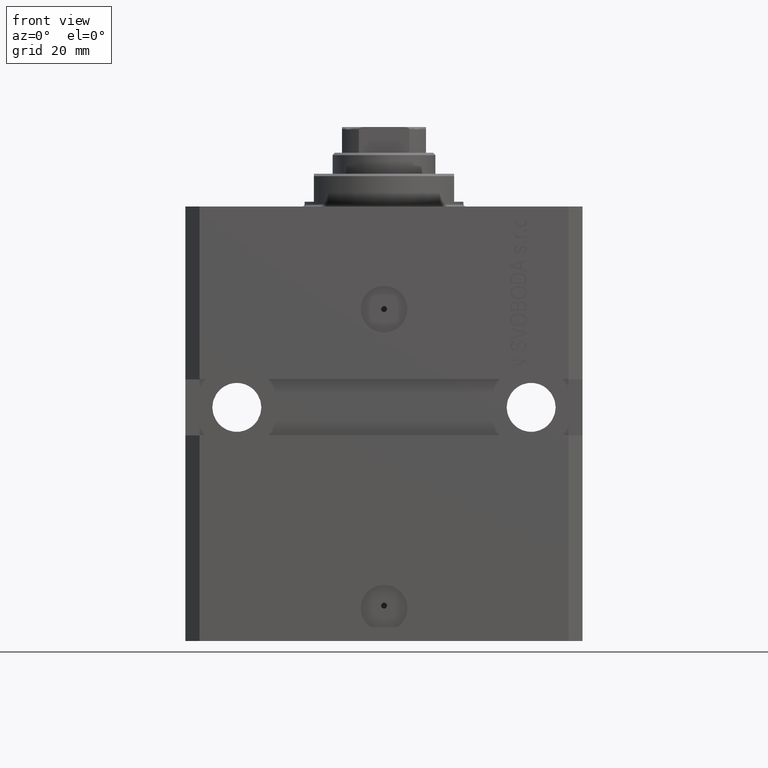
[diagram: clean part render]
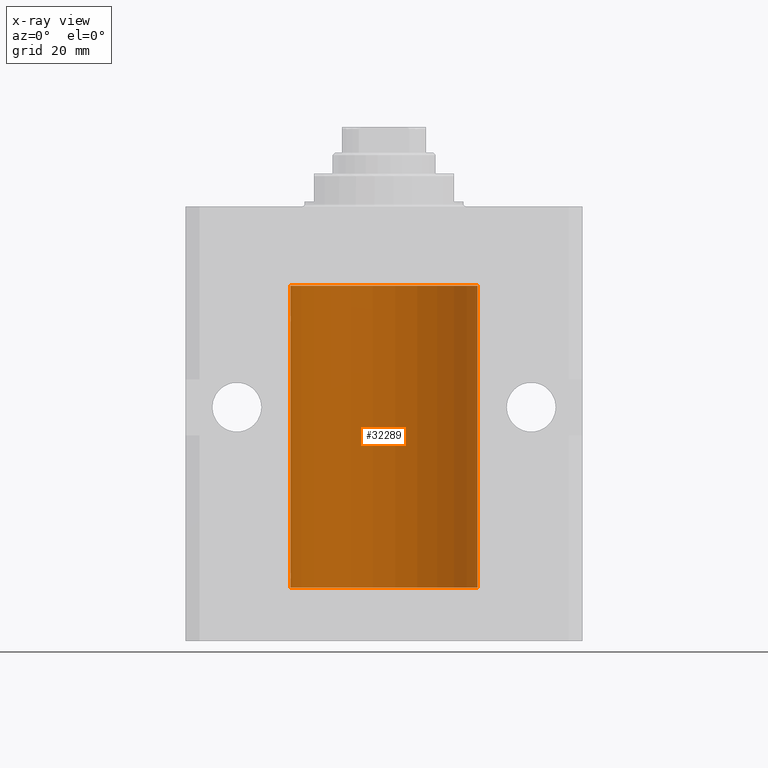
[diagram: x-ray — body ghosted, one internal face saturated and labeled with its STEP entity id]
A machine part, front view, then the same camera in x-ray: the body is ghosted and one INTERNAL B-rep face — a face not visible from any outside direction — is saturated and labeled: STEP entity #32289.
In plain terms, the highlighted cylindrical surface (partial cylindrical patch) has radius 20 mm, axis along (0, 0, 1).
Its self-contained STEP definition (entity closure, byte-faithful):
#682 = ORIENTED_EDGE ( 'NONE', *, *, #41729, .F. ) ;
#2002 = DIRECTION ( 'NONE',  ( -0.000000000000000000, -0.000000000000000000, 1.000000000000000000 ) ) ;
#2418 = CARTESIAN_POINT ( 'NONE',  ( -19.99253506710754991, 0.5587120480776742726, -79.32511620830248944 ) ) ;
#2553 = CIRCLE ( 'NONE', #40960, 20.00000000000000000 ) ;
#2910 = EDGE_CURVE ( 'NONE', #20651, #40926, #12341, .T. ) ;
#3027 = DIRECTION ( 'NONE',  ( -0.000000000000000000, -0.000000000000000000, 1.000000000000000000 ) ) ;
#3312 = CARTESIAN_POINT ( 'NONE',  ( -20.00000000000000000, -2.867584836844214272E-15, -23.37500000000000000 ) ) ;
#5401 = DIRECTION ( 'NONE',  ( 0.000000000000000000, 0.000000000000000000, 1.000000000000000000 ) ) ;
#6051 = CARTESIAN_POINT ( 'NONE',  ( -20.00000000000010303, 3.580159286679549072E-13, -79.62500000000332534 ) ) ;
#6129 = CARTESIAN_POINT ( 'NONE',  ( -20.00000000000000000, -1.124177324826063808E-14, -78.37500000000000000 ) ) ;
#6436 = CARTESIAN_POINT ( 'NONE',  ( 20.00000000000000000, 0.000000000000000000, -17.00000000000000000 ) ) ;
#8471 = EDGE_CURVE ( 'NONE', #34827, #22520, #24158, .T. ) ;
#8780 = DIRECTION ( 'NONE',  ( 0.000000000000000000, 0.000000000000000000, 1.000000000000000000 ) ) ;
#9377 = CARTESIAN_POINT ( 'NONE',  ( -19.99999999999999289, 0.08259581631026131909, -78.37499999999998579 ) ) ;
#10559 = CARTESIAN_POINT ( 'NONE',  ( -20.00000000000010303, 3.580159278407742946E-13, -24.62500000000332889 ) ) ;
#10660 = LINE ( 'NONE', #17639, #36655 ) ;
#10743 = CARTESIAN_POINT ( 'NONE',  ( 20.00000000000000000, 0.000000000000000000, -81.59999999999999432 ) ) ;
#11129 = EDGE_CURVE ( 'NONE', #14670, #35945, #2553, .T. ) ;
#12314 = DIRECTION ( 'NONE',  ( -0.000000000000000000, -0.000000000000000000, 1.000000000000000000 ) ) ;
#12341 = LINE ( 'NONE', #41472, #30721 ) ;
#12448 = CYLINDRICAL_SURFACE ( 'NONE', #45258, 20.00000000000000000 ) ;
#12686 = CARTESIAN_POINT ( 'NONE',  ( 0.000000000000000000, 0.000000000000000000, -81.59999999999999432 ) ) ;
#13225 = CARTESIAN_POINT ( 'NONE',  ( -19.99023380173166231, 0.6249420416828449509, -78.83670793056396064 ) ) ;
#13465 = CARTESIAN_POINT ( 'NONE',  ( -20.00000000000000355, 0.1631688615953343080, -79.62499999999984368 ) ) ;
#13624 = EDGE_CURVE ( 'NONE', #31504, #40926, #22118, .T. ) ;
#14062 = CARTESIAN_POINT ( 'NONE',  ( -20.00000000000000000, 2.449293598294706513E-15, -17.00000000000000000 ) ) ;
#14157 = CARTESIAN_POINT ( 'NONE',  ( -19.99947377218718714, 0.1636439183262877461, -23.39126364004656011 ) ) ;
#14395 = CARTESIAN_POINT ( 'NONE',  ( -19.99256581701871482, 0.5573276956902001311, -23.67348565770948809 ) ) ;
#14488 = AXIS2_PLACEMENT_3D ( 'NONE', #21873, #8780, #41750 ) ;
#14670 = VERTEX_POINT ( 'NONE', #6436 ) ;
#17078 = CARTESIAN_POINT ( 'NONE',  ( -19.99769349528941831, 0.3253804398728615266, -79.55855820727680339 ) ) ;
#17318 = CARTESIAN_POINT ( 'NONE',  ( -19.99766197842594551, 0.3150331617867603295, -78.45402070102504410 ) ) ;
#17639 = CARTESIAN_POINT ( 'NONE',  ( -20.00000000000000000, 2.449293598294706513E-15, -81.59999999999999432 ) ) ;
#18249 = CARTESIAN_POINT ( 'NONE',  ( -20.00000000000000000, 0.1631688615953320320, -24.62499999999985434 ) ) ;
#19084 = CIRCLE ( 'NONE', #14488, 20.00000000000000000 ) ;
#20429 = ORIENTED_EDGE ( 'NONE', *, *, #27202, .F. ) ;
#20651 = VERTEX_POINT ( 'NONE', #24262 ) ;
#21154 = CARTESIAN_POINT ( 'NONE',  ( -19.99253506710754991, 0.5587120480776751608, -24.32511620830248589 ) ) ;
#21652 = VECTOR ( 'NONE', #3027, 1000.000000000000000 ) ;
#21873 = CARTESIAN_POINT ( 'NONE',  ( 0.000000000000000000, 0.000000000000000000, -81.59999999999999432 ) ) ;
#22118 = B_SPLINE_CURVE_WITH_KNOTS ( 'NONE', 3,
 ( #27665, #9377, #46192, #17318, #24049, #38753, #13225, #38993, #2418, #17078, #13465, #28144 ),
 .UNSPECIFIED., .F., .F.,
 ( 4, 2, 2, 2, 2, 4 ),
 ( 1.522880481566060999E-18, 0.0002442693137305179392, 0.0004885386274610343605, 0.0009770772549220966934, 0.001465615882383158918, 0.001954154509844221576 ),
 .UNSPECIFIED. ) ;
#22520 = VERTEX_POINT ( 'NONE', #46871 ) ;
#22959 = ORIENTED_EDGE ( 'NONE', *, *, #40751, .T. ) ;
#24049 = CARTESIAN_POINT ( 'NONE',  ( -19.99638934703457238, 0.3843678041337651452, -78.50046362978099523 ) ) ;
#24158 = B_SPLINE_CURVE_WITH_KNOTS ( 'NONE', 3,
 ( #43532, #36313, #14157, #25476, #32701, #14395, #36549, #32945, #21154, #47376, #18249, #10559 ),
 .UNSPECIFIED., .F., .F.,
 ( 4, 2, 2, 2, 2, 4 ),
 ( 5.848927291235706941E-19, 0.0002442693137305304075, 0.0004885386274610601645, 0.0009770772549221123059, 0.001465615882383164339, 0.001954154509844215938 ),
 .UNSPECIFIED. ) ;
#24262 = CARTESIAN_POINT ( 'NONE',  ( -20.00000000000000000, 2.449293598294706513E-15, -81.59999999999999432 ) ) ;
#25476 = CARTESIAN_POINT ( 'NONE',  ( -19.99766197842594906, 0.3150331617867667688, -23.45402070102505476 ) ) ;
#26603 = VECTOR ( 'NONE', #12314, 1000.000000000000000 ) ;
#27202 = EDGE_CURVE ( 'NONE', #43581, #20651, #19084, .T. ) ;
#27371 = DIRECTION ( 'NONE',  ( 1.000000000000000000, 0.000000000000000000, 0.000000000000000000 ) ) ;
#27460 = CARTESIAN_POINT ( 'NONE',  ( 20.00000000000000000, 0.000000000000000000, -81.59999999999999432 ) ) ;
#27665 = CARTESIAN_POINT ( 'NONE',  ( -20.00000000000000000, -1.124177324826063808E-14, -78.37500000000000000 ) ) ;
#28144 = CARTESIAN_POINT ( 'NONE',  ( -20.00000000000010303, 3.580159286679549072E-13, -79.62500000000332534 ) ) ;
#28918 = ORIENTED_EDGE ( 'NONE', *, *, #11129, .T. ) ;
#30721 = VECTOR ( 'NONE', #2002, 1000.000000000000000 ) ;
#30845 = LINE ( 'NONE', #27460, #26603 ) ;
#31136 = CARTESIAN_POINT ( 'NONE',  ( 0.000000000000000000, 0.000000000000000000, -17.00000000000000000 ) ) ;
#31438 = EDGE_LOOP ( 'NONE', ( #43951, #20429, #22959, #28918, #682, #41964, #39801, #46965 ) ) ;
#31504 = VERTEX_POINT ( 'NONE', #6129 ) ;
#31651 = LINE ( 'NONE', #32372, #21652 ) ;
#32289 = ADVANCED_FACE ( 'NONE', ( #45425 ), #12448, .F. ) ;
#32329 = DIRECTION ( 'NONE',  ( -0.000000000000000000, -0.000000000000000000, 1.000000000000000000 ) ) ;
#32372 = CARTESIAN_POINT ( 'NONE',  ( -20.00000000000000000, 2.449293598294706513E-15, -81.59999999999999432 ) ) ;
#32701 = CARTESIAN_POINT ( 'NONE',  ( -19.99638934703457593, 0.3843678041337688644, -23.50046362978100944 ) ) ;
#32945 = CARTESIAN_POINT ( 'NONE',  ( -19.99023018003212471, 0.6250578794725500931, -24.16284809704970371 ) ) ;
#34754 = DIRECTION ( 'NONE',  ( 1.000000000000000000, 0.000000000000000000, 0.000000000000000000 ) ) ;
#34827 = VERTEX_POINT ( 'NONE', #3312 ) ;
#35945 = VERTEX_POINT ( 'NONE', #14062 ) ;
#36027 = EDGE_CURVE ( 'NONE', #31504, #22520, #31651, .T. ) ;
#36313 = CARTESIAN_POINT ( 'NONE',  ( -19.99999999999999645, 0.08259581631026780002, -23.37500000000000000 ) ) ;
#36549 = CARTESIAN_POINT ( 'NONE',  ( -19.99023380173166231, 0.6249420416828462832, -23.83670793056396064 ) ) ;
#36655 = VECTOR ( 'NONE', #32329, 1000.000000000000000 ) ;
#38695 = DIRECTION ( 'NONE',  ( -0.000000000000000000, -0.000000000000000000, 1.000000000000000000 ) ) ;
#38753 = CARTESIAN_POINT ( 'NONE',  ( -19.99256581701871838, 0.5573276956901996870, -78.67348565770949165 ) ) ;
#38993 = CARTESIAN_POINT ( 'NONE',  ( -19.99023018003212471, 0.6250578794725522025, -79.16284809704971792 ) ) ;
#39801 = ORIENTED_EDGE ( 'NONE', *, *, #36027, .F. ) ;
#40751 = EDGE_CURVE ( 'NONE', #43581, #14670, #30845, .T. ) ;
#40926 = VERTEX_POINT ( 'NONE', #6051 ) ;
#40960 = AXIS2_PLACEMENT_3D ( 'NONE', #31136, #5401, #34754 ) ;
#41472 = CARTESIAN_POINT ( 'NONE',  ( -20.00000000000000000, 2.449293598294706513E-15, -81.59999999999999432 ) ) ;
#41729 = EDGE_CURVE ( 'NONE', #34827, #35945, #10660, .T. ) ;
#41750 = DIRECTION ( 'NONE',  ( 1.000000000000000000, 0.000000000000000000, 0.000000000000000000 ) ) ;
#41964 = ORIENTED_EDGE ( 'NONE', *, *, #8471, .T. ) ;
#43532 = CARTESIAN_POINT ( 'NONE',  ( -20.00000000000000000, -2.867584836844214272E-15, -23.37500000000000000 ) ) ;
#43581 = VERTEX_POINT ( 'NONE', #10743 ) ;
#43951 = ORIENTED_EDGE ( 'NONE', *, *, #2910, .F. ) ;
#45258 = AXIS2_PLACEMENT_3D ( 'NONE', #12686, #38695, #27371 ) ;
#45425 = FACE_OUTER_BOUND ( 'NONE', #31438, .T. ) ;
#46192 = CARTESIAN_POINT ( 'NONE',  ( -19.99947377218718003, 0.1636439183262797525, -78.39126364004653169 ) ) ;
#46871 = CARTESIAN_POINT ( 'NONE',  ( -20.00000000000010303, 3.580159278407742946E-13, -24.62500000000332889 ) ) ;
#46965 = ORIENTED_EDGE ( 'NONE', *, *, #13624, .T. ) ;
#47376 = CARTESIAN_POINT ( 'NONE',  ( -19.99769349528941120, 0.3253804398728645242, -24.55855820727680339 ) ) ;